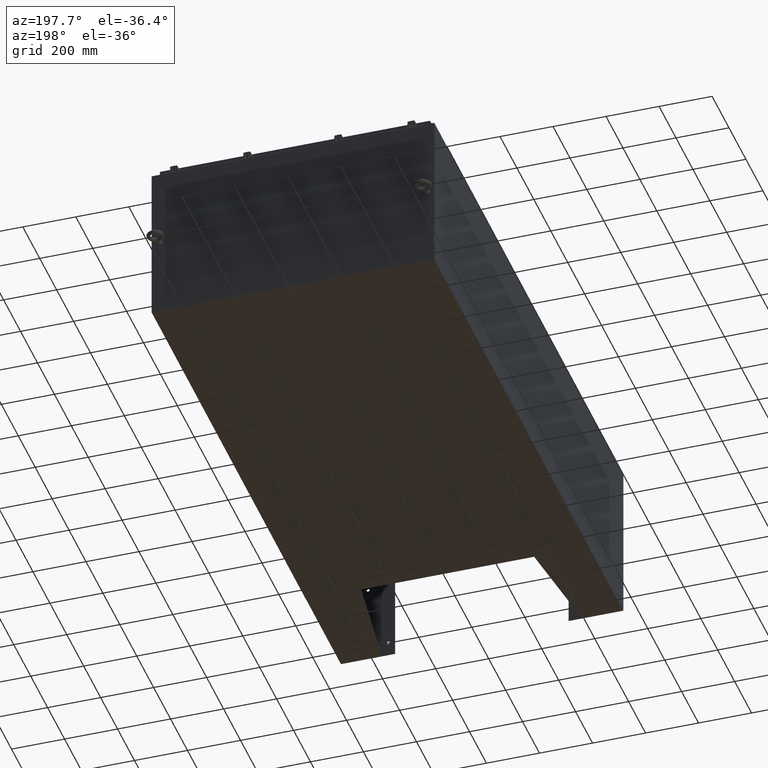
[diagram: clean part render]
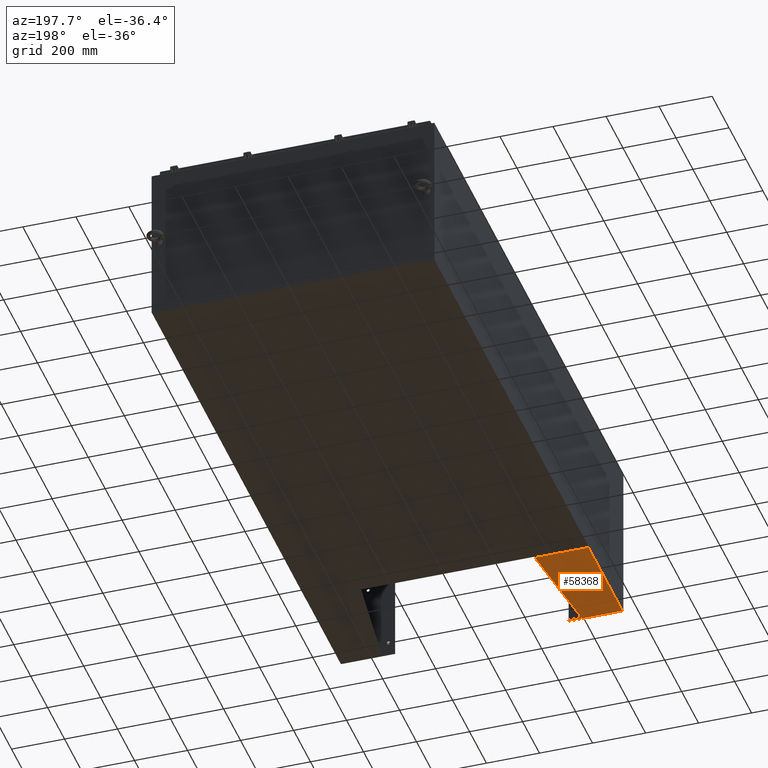
[diagram: same view with one face highlighted and labeled with its STEP entity id]
A machine part, auxiliary view. The second image highlights one B-rep face of the part: STEP entity #58368.
In plain terms, the highlighted planar face has unit normal (-0, -0, 1).
Its self-contained STEP definition (entity closure, byte-faithful):
#371 = LINE ( 'NONE', #38222, #14569 ) ;
#2348 = DIRECTION ( 'NONE',  ( -3.550958521948298200E-015, -0.0000000000000000000, -1.000000000000000000 ) ) ;
#4736 = EDGE_LOOP ( 'NONE', ( #52378, #66912, #75873, #72258, #21570, #25352 ) ) ;
#5492 = EDGE_CURVE ( 'NONE', #47461, #35715, #7506, .T. ) ;
#7506 = LINE ( 'NONE', #62020, #37235 ) ;
#8782 = AXIS2_PLACEMENT_3D ( 'NONE', #65338, #30126, #71278 ) ;
#13393 = LINE ( 'NONE', #45923, #44943 ) ;
#14569 = VECTOR ( 'NONE', #32317, 39.37007874015748100 ) ;
#18320 = LINE ( 'NONE', #73110, #30271 ) ;
#21439 = CARTESIAN_POINT ( 'NONE',  ( 12.00000000000001200, 7.857000000000001100, 8.001000000000011900 ) ) ;
#21570 = ORIENTED_EDGE ( 'NONE', *, *, #32561, .T. ) ;
#21582 = VERTEX_POINT ( 'NONE', #21439 ) ;
#22652 = DIRECTION ( 'NONE',  ( -3.550958521948298200E-015, 0.0000000000000000000, -1.000000000000000000 ) ) ;
#23287 = EDGE_CURVE ( 'NONE', #73974, #35715, #18320, .T. ) ;
#25352 = ORIENTED_EDGE ( 'NONE', *, *, #63706, .F. ) ;
#29756 = DIRECTION ( 'NONE',  ( 0.0000000000000000000, -1.000000000000000000, 0.0000000000000000000 ) ) ;
#30126 = DIRECTION ( 'NONE',  ( -1.000000000000000000, 0.0000000000000000000, 3.550958521948298200E-015 ) ) ;
#30271 = VECTOR ( 'NONE', #22652, 39.37007874015748100 ) ;
#30568 = VECTOR ( 'NONE', #2348, 39.37007874015748100 ) ;
#30742 = EDGE_CURVE ( 'NONE', #49452, #73974, #60856, .T. ) ;
#31315 = VECTOR ( 'NONE', #29756, 39.37007874015748100 ) ;
#32317 = DIRECTION ( 'NONE',  ( 4.399772607369800400E-016, 0.9922942345449394800, 0.1239038017531047900 ) ) ;
#32561 = EDGE_CURVE ( 'NONE', #47461, #21582, #13393, .T. ) ;
#34206 = DIRECTION ( 'NONE',  ( 0.0000000000000000000, 0.0000000000000000000, 1.000000000000000000 ) ) ;
#35715 = VERTEX_POINT ( 'NONE', #56350 ) ;
#36885 = CARTESIAN_POINT ( 'NONE',  ( 12.00000000000002500, -7.749999999999999100, 8.001000000000011900 ) ) ;
#37235 = VECTOR ( 'NONE', #71224, 39.37007874015748100 ) ;
#38222 = CARTESIAN_POINT ( 'NONE',  ( 12.00000000000001800, -7.749999999999999100, 6.052216497445930300 ) ) ;
#41458 = VERTEX_POINT ( 'NONE', #50469 ) ;
#44017 = CARTESIAN_POINT ( 'NONE',  ( 12.00000000000002500, -7.999999999999999100, 8.001000000000015400 ) ) ;
#44943 = VECTOR ( 'NONE', #34206, 39.37007874015748100 ) ;
#45923 = CARTESIAN_POINT ( 'NONE',  ( 12.00000000000001200, 7.857000000000001100, 0.03900000000001561900 ) ) ;
#46330 = LINE ( 'NONE', #55642, #30568 ) ;
#47461 = VERTEX_POINT ( 'NONE', #60425 ) ;
#49257 = FACE_OUTER_BOUND ( 'NONE', #4736, .T. ) ;
#49452 = VERTEX_POINT ( 'NONE', #36885 ) ;
#50469 = CARTESIAN_POINT ( 'NONE',  ( 12.00000000000001800, -7.749999999999999100, 6.052216497445930300 ) ) ;
#52378 = ORIENTED_EDGE ( 'NONE', *, *, #54599, .F. ) ;
#54599 = EDGE_CURVE ( 'NONE', #49452, #41458, #46330, .T. ) ;
#55642 = CARTESIAN_POINT ( 'NONE',  ( 12.00000000000002500, -7.749999999999999100, 8.001000000000015400 ) ) ;
#56350 = CARTESIAN_POINT ( 'NONE',  ( 11.99999999999999600, -7.999999999999993800, 0.03900000000000139500 ) ) ;
#58368 = ADVANCED_FACE ( 'NONE', ( #49257 ), #59536, .F. ) ;
#59536 = PLANE ( 'NONE',  #8782 ) ;
#60425 = CARTESIAN_POINT ( 'NONE',  ( 12.00000000000000900, 7.857000000000001100, 0.03900000000001561900 ) ) ;
#60856 = LINE ( 'NONE', #64983, #31315 ) ;
#62020 = CARTESIAN_POINT ( 'NONE',  ( 11.99999999999999600, -7.999999999999999100, 0.03900000000001561900 ) ) ;
#63706 = EDGE_CURVE ( 'NONE', #41458, #21582, #371, .T. ) ;
#64983 = CARTESIAN_POINT ( 'NONE',  ( 12.00000000000002500, -7.999999999999999100, 8.001000000000015400 ) ) ;
#65338 = CARTESIAN_POINT ( 'NONE',  ( 12.00000000000002500, -7.999999999999999100, 8.001000000000015400 ) ) ;
#66912 = ORIENTED_EDGE ( 'NONE', *, *, #30742, .T. ) ;
#71224 = DIRECTION ( 'NONE',  ( -0.0000000000000000000, -1.000000000000000000, 0.0000000000000000000 ) ) ;
#71278 = DIRECTION ( 'NONE',  ( 3.550958521948298200E-015, 0.0000000000000000000, 1.000000000000000000 ) ) ;
#72258 = ORIENTED_EDGE ( 'NONE', *, *, #5492, .F. ) ;
#73110 = CARTESIAN_POINT ( 'NONE',  ( 12.00000000000002500, -7.999999999999999100, 8.001000000000015400 ) ) ;
#73974 = VERTEX_POINT ( 'NONE', #44017 ) ;
#75873 = ORIENTED_EDGE ( 'NONE', *, *, #23287, .T. ) ;